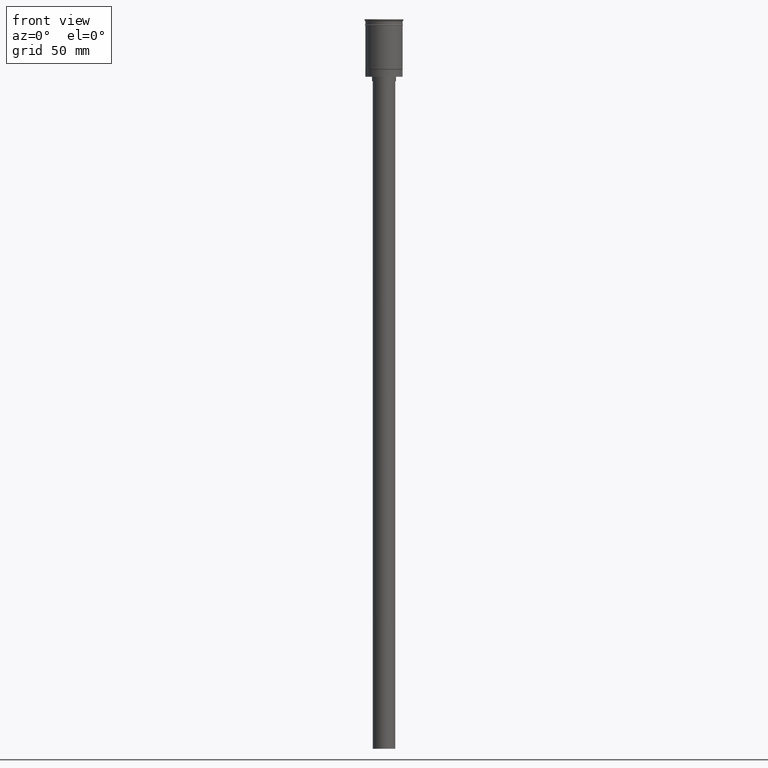
[diagram: clean part render]
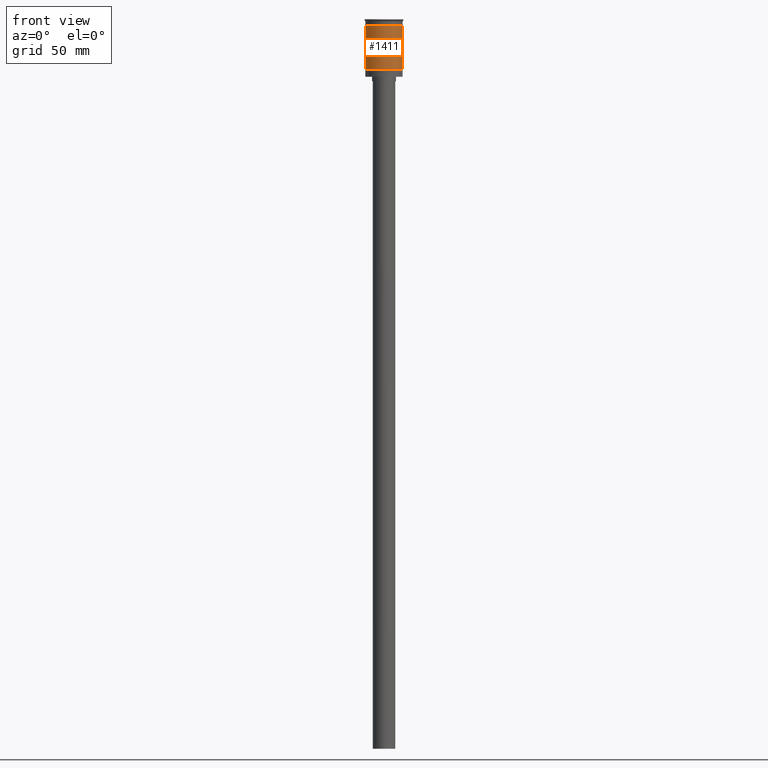
[diagram: same view with one face highlighted and labeled with its STEP entity id]
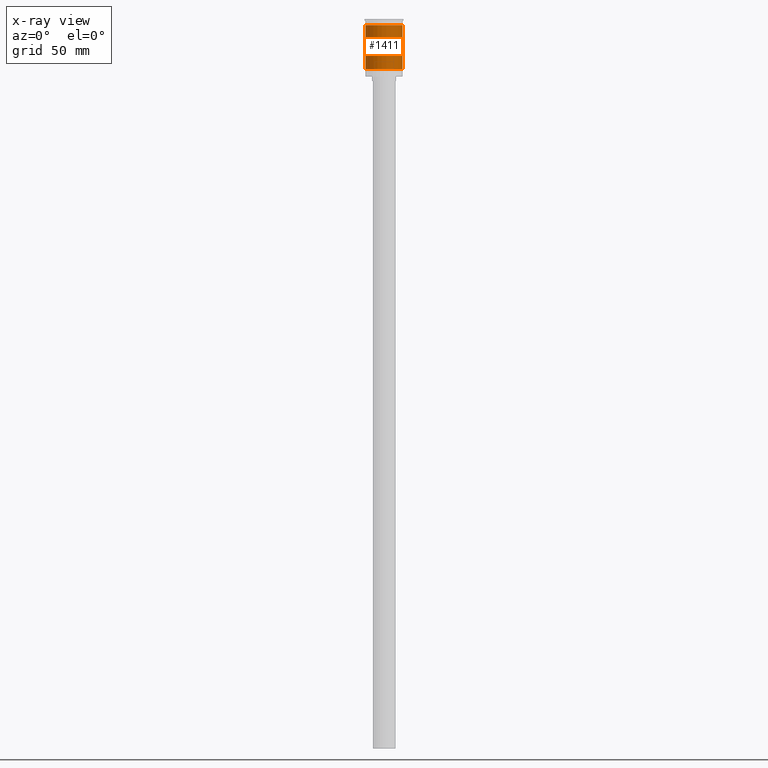
[diagram: x-ray of the same camera — body ghosted, the highlighted face saturated]
A machine part, front view. The second image highlights one B-rep face of the part: STEP entity #1411.
The next image is the same camera in x-ray: the body ghosted, the highlighted face saturated — about 0% of this face is hidden behind the body in this view.
In plain terms, the highlighted cylindrical surface (edge-blend (fillet) strip) has radius 12.5 mm, axis along (-0, -0, 1).
Its self-contained STEP definition (entity closure, byte-faithful):
#2 = CARTESIAN_POINT ( 'NONE',  ( 12.49999999999999645, 0.000000000000000000, 0.000000000000000000 ) ) ;
#10 = LINE ( 'NONE', #2, #1199 ) ;
#39 = EDGE_CURVE ( 'NONE', #1305, #1346, #10, .T. ) ;
#66 = VECTOR ( 'NONE', #1019, 1000.000000000000000 ) ;
#90 = CIRCLE ( 'NONE', #1229, 12.49999999999999645 ) ;
#98 = EDGE_LOOP ( 'NONE', ( #456, #640, #761, #558 ) ) ;
#101 = CARTESIAN_POINT ( 'NONE',  ( 0.000000000000000000, 0.000000000000000000, -3.999999999999996447 ) ) ;
#245 = FACE_OUTER_BOUND ( 'NONE', #98, .T. ) ;
#299 = VERTEX_POINT ( 'NONE', #1405 ) ;
#331 = VERTEX_POINT ( 'NONE', #417 ) ;
#417 = CARTESIAN_POINT ( 'NONE',  ( -12.49999999999999289, 0.000000000000000000, -33.30000000000005400 ) ) ;
#445 = DIRECTION ( 'NONE',  ( -0.000000000000000000, -0.000000000000000000, 1.000000000000000000 ) ) ;
#456 = ORIENTED_EDGE ( 'NONE', *, *, #1264, .F. ) ;
#558 = ORIENTED_EDGE ( 'NONE', *, *, #681, .F. ) ;
#587 = CYLINDRICAL_SURFACE ( 'NONE', #973, 12.49999999999999645 ) ;
#600 = DIRECTION ( 'NONE',  ( -0.000000000000000000, -0.000000000000000000, 1.000000000000000000 ) ) ;
#608 = EDGE_CURVE ( 'NONE', #331, #1305, #90, .T. ) ;
#618 = LINE ( 'NONE', #877, #66 ) ;
#637 = CIRCLE ( 'NONE', #809, 12.49999999999999822 ) ;
#640 = ORIENTED_EDGE ( 'NONE', *, *, #608, .T. ) ;
#681 = EDGE_CURVE ( 'NONE', #299, #1346, #637, .T. ) ;
#761 = ORIENTED_EDGE ( 'NONE', *, *, #39, .T. ) ;
#809 = AXIS2_PLACEMENT_3D ( 'NONE', #101, #1050, #1423 ) ;
#827 = CARTESIAN_POINT ( 'NONE',  ( 0.000000000000000000, 0.000000000000000000, -33.30000000000005400 ) ) ;
#868 = DIRECTION ( 'NONE',  ( 1.000000000000000000, 0.000000000000000000, 0.000000000000000000 ) ) ;
#877 = CARTESIAN_POINT ( 'NONE',  ( -12.49999999999999645, 1.530808498934191127E-15, 0.000000000000000000 ) ) ;
#973 = AXIS2_PLACEMENT_3D ( 'NONE', #975, #600, #868 ) ;
#975 = CARTESIAN_POINT ( 'NONE',  ( 0.000000000000000000, 0.000000000000000000, 0.000000000000000000 ) ) ;
#1019 = DIRECTION ( 'NONE',  ( -0.000000000000000000, -0.000000000000000000, 1.000000000000000000 ) ) ;
#1050 = DIRECTION ( 'NONE',  ( -0.000000000000000000, -0.000000000000000000, 1.000000000000000000 ) ) ;
#1069 = DIRECTION ( 'NONE',  ( -1.000000000000000000, 0.000000000000000000, 0.000000000000000000 ) ) ;
#1199 = VECTOR ( 'NONE', #1499, 1000.000000000000000 ) ;
#1217 = CARTESIAN_POINT ( 'NONE',  ( 12.49999999999999822, 0.000000000000000000, -3.999999999999996447 ) ) ;
#1229 = AXIS2_PLACEMENT_3D ( 'NONE', #827, #445, #1069 ) ;
#1264 = EDGE_CURVE ( 'NONE', #331, #299, #618, .T. ) ;
#1305 = VERTEX_POINT ( 'NONE', #1493 ) ;
#1346 = VERTEX_POINT ( 'NONE', #1217 ) ;
#1405 = CARTESIAN_POINT ( 'NONE',  ( -12.50000000000000000, 1.530808498934191521E-15, -3.999999999999996447 ) ) ;
#1411 = ADVANCED_FACE ( 'NONE', ( #245 ), #587, .T. ) ;
#1423 = DIRECTION ( 'NONE',  ( 1.000000000000000000, 0.000000000000000000, 0.000000000000000000 ) ) ;
#1493 = CARTESIAN_POINT ( 'NONE',  ( 12.49999999999999645, 1.530808498934191127E-15, -33.30000000000005400 ) ) ;
#1499 = DIRECTION ( 'NONE',  ( -0.000000000000000000, -0.000000000000000000, 1.000000000000000000 ) ) ;